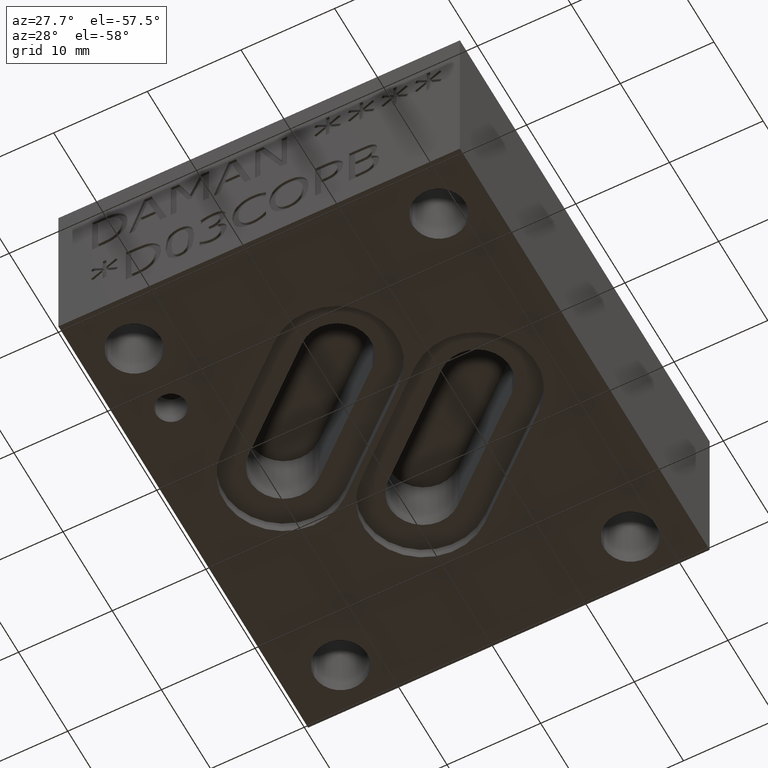
[diagram: clean part render]
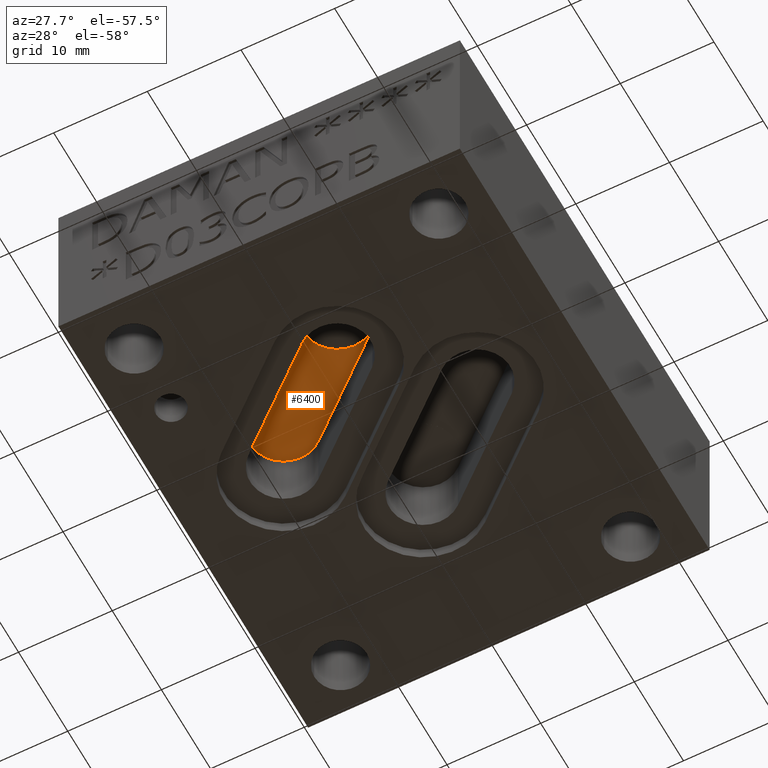
[diagram: same view with one face highlighted and labeled with its STEP entity id]
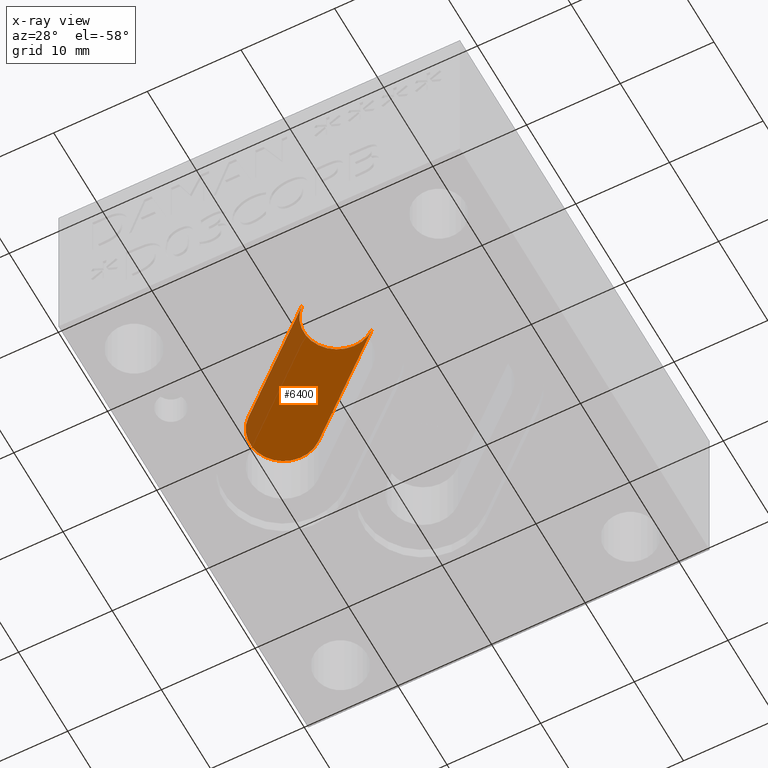
[diagram: x-ray of the same camera — body ghosted, the highlighted face saturated]
A machine part, auxiliary view. The second image highlights one B-rep face of the part: STEP entity #6400.
The next image is the same camera in x-ray: the body ghosted, the highlighted face saturated — about 22% of this face is hidden behind the body in this view.
In plain terms, the highlighted planar face has unit normal (0, 0, 1).
Its self-contained STEP definition (entity closure, byte-faithful):
#17=CIRCLE('',#6639,0.1405);
#44=CIRCLE('',#6688,0.1405);
#529=FACE_OUTER_BOUND('',#901,.T.);
#901=EDGE_LOOP('',(#5780,#5781,#5782,#5783));
#1556=LINE('',#11241,#2240);
#1560=LINE('',#11249,#2244);
#2240=VECTOR('',#7761,0.5321683239352);
#2244=VECTOR('',#7767,0.5321683239352);
#3044=VERTEX_POINT('',#11234);
#3045=VERTEX_POINT('',#11236);
#3046=VERTEX_POINT('',#11240);
#3049=VERTEX_POINT('',#11248);
#3933=EDGE_CURVE('',#3045,#3044,#17,.T.);
#3935=EDGE_CURVE('',#3044,#3046,#1556,.T.);
#3939=EDGE_CURVE('',#3049,#3045,#1560,.T.);
#3998=EDGE_CURVE('',#3046,#3049,#44,.T.);
#5780=ORIENTED_EDGE('',*,*,#3998,.T.);
#5781=ORIENTED_EDGE('',*,*,#3939,.T.);
#5782=ORIENTED_EDGE('',*,*,#3933,.T.);
#5783=ORIENTED_EDGE('',*,*,#3935,.T.);
#6069=PLANE('',#6687);
#6400=ADVANCED_FACE('',(#529),#6069,.F.);
#6639=AXIS2_PLACEMENT_3D('',#11237,#7756,#7757);
#6687=AXIS2_PLACEMENT_3D('',#11367,#7890,#7891);
#6688=AXIS2_PLACEMENT_3D('',#11368,#7892,#7893);
#7756=DIRECTION('center_axis',(0.,0.,1.));
#7757=DIRECTION('ref_axis',(0.762958436227032,-0.646447542024874,0.));
#7761=DIRECTION('',(-0.763386285369115,0.645942241466174,0.));
#7767=DIRECTION('',(0.763386285369115,-0.645942241466174,0.));
#7890=DIRECTION('center_axis',(0.,0.,1.));
#7891=DIRECTION('ref_axis',(1.,0.,0.));
#7892=DIRECTION('center_axis',(0.,0.,-1.));
#7893=DIRECTION('ref_axis',(1.,0.,0.));
#11234=CARTESIAN_POINT('',(0.753495115074003,0.516994226905639,0.313));
#11236=CARTESIAN_POINT('',(0.935004884925997,0.731505773094361,0.313));
#11237=CARTESIAN_POINT('Origin',(0.84425,0.62425,0.313));
#11240=CARTESIAN_POINT('',(0.347245115074002,0.860744226905639,0.313));
#11241=CARTESIAN_POINT('',(0.753495115074003,0.516994226905639,0.313));
#11248=CARTESIAN_POINT('',(0.528754884925997,1.07525577309436,0.313));
#11249=CARTESIAN_POINT('',(0.528754884925997,1.07525577309436,0.313));
#11367=CARTESIAN_POINT('Origin',(0.50825,0.968,0.313));
#11368=CARTESIAN_POINT('Origin',(0.438,0.968,0.313));